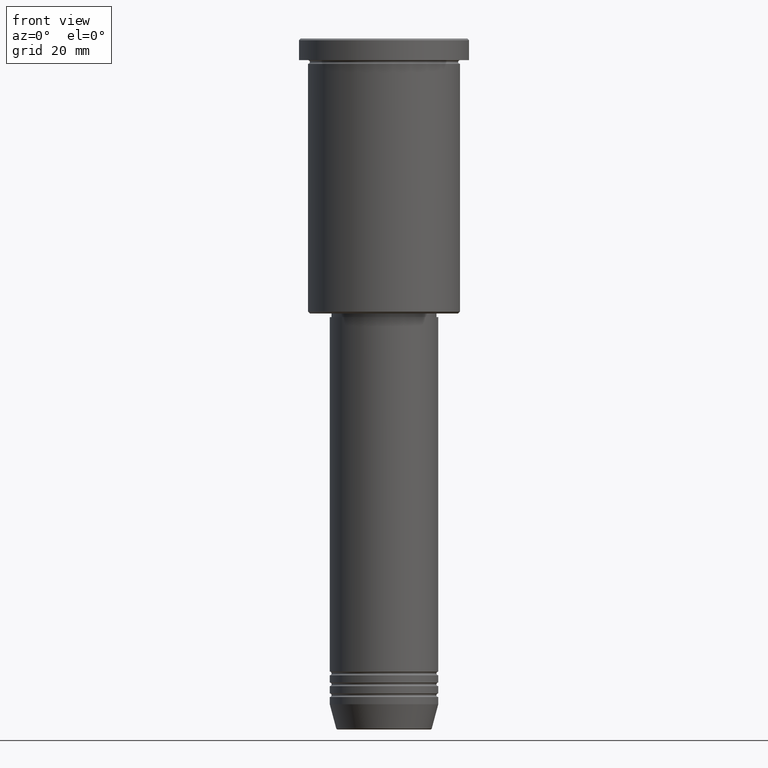
[diagram: clean part render]
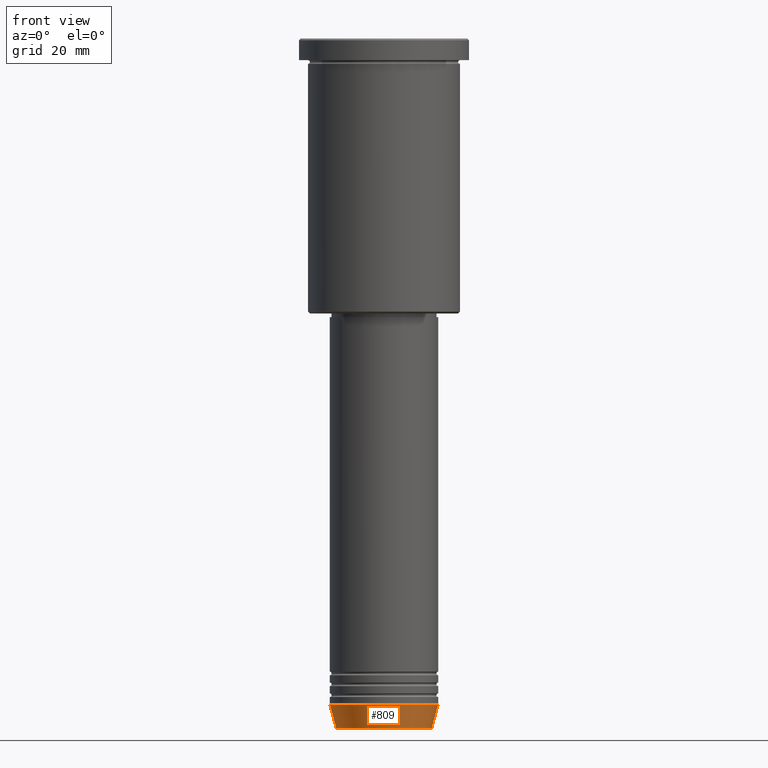
[diagram: same view with one face highlighted and labeled with its STEP entity id]
A machine part, front view. The second image highlights one B-rep face of the part: STEP entity #809.
In plain terms, the highlighted conical surface has half-angle 15 deg.
Its self-contained STEP definition (entity closure, byte-faithful):
#41 = EDGE_LOOP ( 'NONE', ( #789, #704, #630, #696 ) ) ;
#55 = VERTEX_POINT ( 'NONE', #751 ) ;
#77 = DIRECTION ( 'NONE',  ( 1.000000000000000000, 0.000000000000000000, 0.000000000000000000 ) ) ;
#161 = CARTESIAN_POINT ( 'NONE',  ( 0.000000000000000000, 0.000000000000000000, -184.0000000000000284 ) ) ;
#178 = CIRCLE ( 'NONE', #358, 13.22365507213719305 ) ;
#219 = VERTEX_POINT ( 'NONE', #1131 ) ;
#236 = DIRECTION ( 'NONE',  ( -0.000000000000000000, -0.000000000000000000, 1.000000000000000000 ) ) ;
#244 = VECTOR ( 'NONE', #741, 1000.000000000000000 ) ;
#346 = LINE ( 'NONE', #973, #1113 ) ;
#348 = EDGE_CURVE ( 'NONE', #922, #503, #1025, .T. ) ;
#358 = AXIS2_PLACEMENT_3D ( 'NONE', #646, #386, #561 ) ;
#386 = DIRECTION ( 'NONE',  ( -0.000000000000000000, -0.000000000000000000, 1.000000000000000000 ) ) ;
#409 = FACE_OUTER_BOUND ( 'NONE', #41, .T. ) ;
#450 = DIRECTION ( 'NONE',  ( -0.000000000000000000, -0.000000000000000000, 1.000000000000000000 ) ) ;
#503 = VERTEX_POINT ( 'NONE', #1044 ) ;
#531 = EDGE_CURVE ( 'NONE', #55, #219, #346, .T. ) ;
#561 = DIRECTION ( 'NONE',  ( 1.000000000000000000, 0.000000000000000000, 0.000000000000000000 ) ) ;
#620 = DIRECTION ( 'NONE',  ( 1.000000000000000000, 0.000000000000000000, 0.000000000000000000 ) ) ;
#630 = ORIENTED_EDGE ( 'NONE', *, *, #531, .T. ) ;
#646 = CARTESIAN_POINT ( 'NONE',  ( 0.000000000000000000, 0.000000000000000000, -190.6294095225512422 ) ) ;
#665 = AXIS2_PLACEMENT_3D ( 'NONE', #786, #236, #77 ) ;
#668 = CARTESIAN_POINT ( 'NONE',  ( -13.22365507213719305, 1.728200442216588583E-15, -190.6294095225512422 ) ) ;
#696 = ORIENTED_EDGE ( 'NONE', *, *, #1053, .F. ) ;
#704 = ORIENTED_EDGE ( 'NONE', *, *, #735, .T. ) ;
#735 = EDGE_CURVE ( 'NONE', #922, #55, #178, .T. ) ;
#741 = DIRECTION ( 'NONE',  ( -0.2588190451025213501, 3.169619151431772337E-17, 0.9659258262890680902 ) ) ;
#751 = CARTESIAN_POINT ( 'NONE',  ( 13.22365507213719305, 0.000000000000000000, -190.6294095225512422 ) ) ;
#786 = CARTESIAN_POINT ( 'NONE',  ( 0.000000000000000000, 0.000000000000000000, -184.0000000000000284 ) ) ;
#789 = ORIENTED_EDGE ( 'NONE', *, *, #348, .F. ) ;
#809 = ADVANCED_FACE ( 'NONE', ( #409 ), #815, .T. ) ;
#815 = CONICAL_SURFACE ( 'NONE', #998, 15.00000000000000000, 0.2617993877991500740 ) ;
#877 = DIRECTION ( 'NONE',  ( 0.2588190451025213501, 0.000000000000000000, 0.9659258262890680902 ) ) ;
#878 = CIRCLE ( 'NONE', #665, 15.00000000000000000 ) ;
#922 = VERTEX_POINT ( 'NONE', #668 ) ;
#925 = CARTESIAN_POINT ( 'NONE',  ( -15.00000000000000000, 1.836970198721029589E-15, -184.0000000000000284 ) ) ;
#973 = CARTESIAN_POINT ( 'NONE',  ( 15.00000000000000000, 0.000000000000000000, -184.0000000000000284 ) ) ;
#998 = AXIS2_PLACEMENT_3D ( 'NONE', #161, #450, #620 ) ;
#1025 = LINE ( 'NONE', #925, #244 ) ;
#1044 = CARTESIAN_POINT ( 'NONE',  ( -15.00000000000000000, 1.836970198721029589E-15, -184.0000000000000284 ) ) ;
#1053 = EDGE_CURVE ( 'NONE', #503, #219, #878, .T. ) ;
#1113 = VECTOR ( 'NONE', #877, 1000.000000000000000 ) ;
#1131 = CARTESIAN_POINT ( 'NONE',  ( 15.00000000000000000, 0.000000000000000000, -184.0000000000000284 ) ) ;